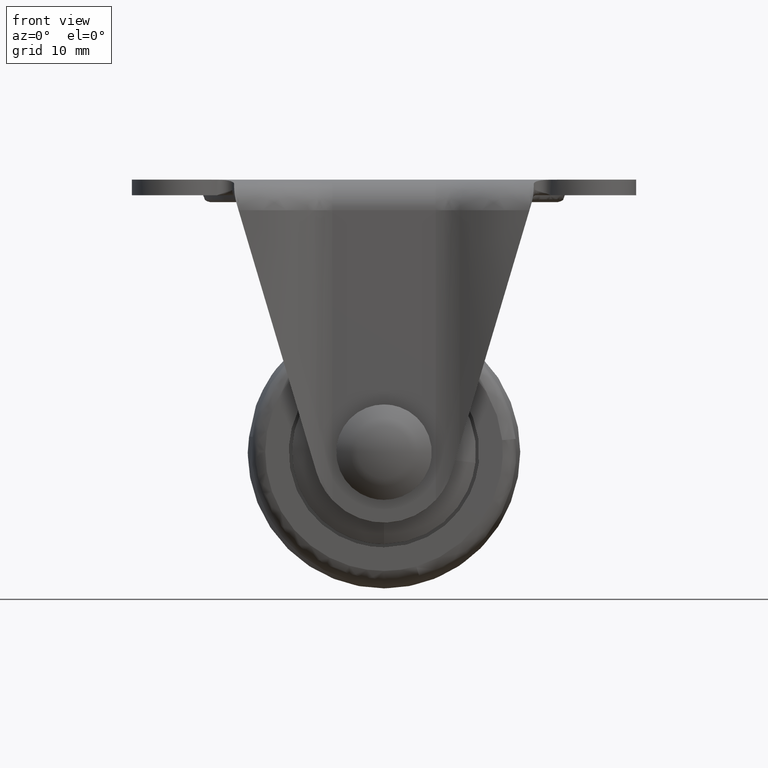
[diagram: clean part render]
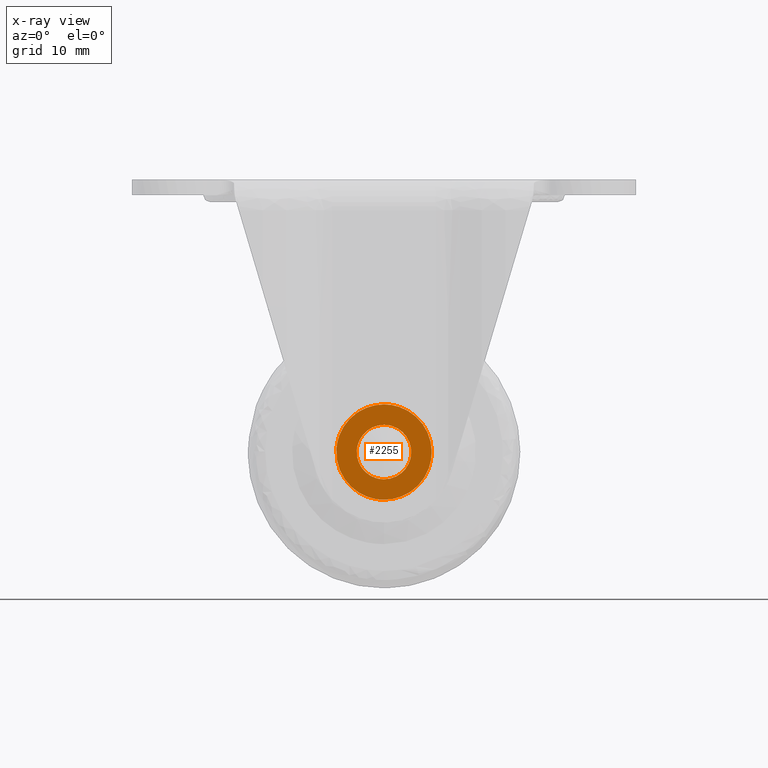
[diagram: x-ray — body ghosted, one internal face saturated and labeled with its STEP entity id]
A machine part, front view, then the same camera in x-ray: the body is ghosted and one INTERNAL B-rep face — a face not visible from any outside direction — is saturated and labeled: STEP entity #2255.
In plain terms, the highlighted face is a freeform B-spline surface patch.
Its self-contained STEP definition (entity closure, byte-faithful):
#859=CARTESIAN_POINT('',(-2.575316656557962,-15.499999999982430,-46.509050938393131));
#860=VERTEX_POINT('',#859);
#866=CARTESIAN_POINT('',(-6.978421336135041,-15.499999999975261,-39.450786329763567));
#867=VERTEX_POINT('',#866);
#868=CARTESIAN_POINT('',(-6.978421336135042,-15.499999999975255,-39.450786329763574));
#869=CARTESIAN_POINT('',(-7.0,-15.500000000000002,-39.724969250805259));
#870=CARTESIAN_POINT('',(-7.0,-15.500000000000000,-40.0));
#871=CARTESIAN_POINT('',(-6.999999999999999,-15.500000000000000,-44.758417731975371));
#872=CARTESIAN_POINT('',(-2.575316656557961,-15.499999999982430,-46.509050938393123));
#880=(BOUNDED_CURVE()B_SPLINE_CURVE(2,(#868,#869,#870,#871,#872),.UNSPECIFIED.,.F.,.U.)B_SPLINE_CURVE_WITH_KNOTS((3,2,3),(0.736331300625869,0.750000000000000,0.937532549933941),.UNSPECIFIED.)CURVE()GEOMETRIC_REPRESENTATION_ITEM()RATIONAL_B_SPLINE_CURVE((0.969723356157420,0.983986122573270,1.0,0.780291951270214,0.890203187494886))REPRESENTATION_ITEM(''));
#881=EDGE_CURVE('',#867,#860,#880,.T.);
#978=CARTESIAN_POINT('',(0.0,-15.500000000000000,-33.0));
#979=VERTEX_POINT('',#978);
#980=CARTESIAN_POINT('',(0.0,-15.500000000000000,-33.0));
#981=CARTESIAN_POINT('',(-6.470733441346284,-15.500000000000009,-33.000000000000007));
#982=CARTESIAN_POINT('',(-6.978421336135041,-15.499999999975257,-39.450786329763574));
#990=(BOUNDED_CURVE()B_SPLINE_CURVE(2,(#980,#981,#982),.UNSPECIFIED.,.F.,.U.)B_SPLINE_CURVE_WITH_KNOTS((3,3),(0.500000000000000,0.736331300625869),.UNSPECIFIED.)CURVE()GEOMETRIC_REPRESENTATION_ITEM()RATIONAL_B_SPLINE_CURVE((1.0,0.723120658613278,0.969723356157421))REPRESENTATION_ITEM(''));
#991=EDGE_CURVE('',#979,#867,#990,.T.);
#993=CARTESIAN_POINT('',(0.0,-15.500000000000000,-47.0));
#994=VERTEX_POINT('',#993);
#995=CARTESIAN_POINT('',(0.0,-15.500000000000000,-47.0));
#996=CARTESIAN_POINT('',(6.999999999999999,-15.500000000000005,-47.000000000000014));
#997=CARTESIAN_POINT('',(7.0,-15.500000000000000,-40.0));
#998=CARTESIAN_POINT('',(6.999999999999999,-15.500000000000005,-33.0));
#999=CARTESIAN_POINT('',(0.0,-15.500000000000000,-33.0));
#1007=(BOUNDED_CURVE()B_SPLINE_CURVE(2,(#995,#996,#997,#998,#999),.UNSPECIFIED.,.F.,.U.)B_SPLINE_CURVE_WITH_KNOTS((3,2,3),(0.0,0.250000000000000,0.500000000000000),.UNSPECIFIED.)CURVE()GEOMETRIC_REPRESENTATION_ITEM()RATIONAL_B_SPLINE_CURVE((1.0,0.707106781186547,1.0,0.707106781186547,1.0))REPRESENTATION_ITEM(''));
#1008=EDGE_CURVE('',#994,#979,#1007,.T.);
#1010=CARTESIAN_POINT('',(-2.575316656557963,-15.499999999982434,-46.509050938393131));
#1011=CARTESIAN_POINT('',(-1.334454705883002,-15.499999999999998,-47.000000000000007));
#1012=CARTESIAN_POINT('',(0.0,-15.500000000000000,-47.0));
#1020=(BOUNDED_CURVE()B_SPLINE_CURVE(2,(#1010,#1011,#1012),.UNSPECIFIED.,.F.,.U.)B_SPLINE_CURVE_WITH_KNOTS((3,3),(0.937532549933940,1.0),.UNSPECIFIED.)CURVE()GEOMETRIC_REPRESENTATION_ITEM()RATIONAL_B_SPLINE_CURVE((0.890203187494886,0.926814829916332,1.0))REPRESENTATION_ITEM(''));
#1021=EDGE_CURVE('',#860,#994,#1020,.T.);
#1049=CARTESIAN_POINT('',(3.972038105451626,-15.500000000000000,-40.472136938653591));
#1050=VERTEX_POINT('',#1049);
#1051=CARTESIAN_POINT('',(0.0,-15.500000000000000,-35.999999999999893));
#1052=VERTEX_POINT('',#1051);
#1053=CARTESIAN_POINT('',(3.972038105451625,-15.499999999999996,-40.472136938653591));
#1054=CARTESIAN_POINT('',(4.000000000000116,-15.500000000000004,-40.236896478634463));
#1055=CARTESIAN_POINT('',(4.000000000000116,-15.500000000000000,-40.0));
#1056=CARTESIAN_POINT('',(4.000000000000116,-15.500000000000004,-35.999999999999879));
#1057=CARTESIAN_POINT('',(0.0,-15.500000000000000,-35.999999999999893));
#1065=(BOUNDED_CURVE()B_SPLINE_CURVE(2,(#1053,#1054,#1055,#1056,#1057),.UNSPECIFIED.,.F.,.U.)B_SPLINE_CURVE_WITH_KNOTS((3,2,3),(0.229562473513386,0.250000000000000,0.500000000000000),.UNSPECIFIED.)CURVE()GEOMETRIC_REPRESENTATION_ITEM()RATIONAL_B_SPLINE_CURVE((0.956026754183460,0.976055948331002,1.0,0.707106781186548,1.0))REPRESENTATION_ITEM(''));
#1066=EDGE_CURVE('',#1050,#1052,#1065,.T.);
#1068=CARTESIAN_POINT('',(-3.992539193679579,-15.500000000000000,-39.755805841729710));
#1069=VERTEX_POINT('',#1068);
#1070=CARTESIAN_POINT('',(0.0,-15.500000000000000,-35.999999999999893));
#1071=CARTESIAN_POINT('',(-3.762824267375785,-15.500000000000000,-35.999999999999901));
#1072=CARTESIAN_POINT('',(-3.992539193679579,-15.500000000000002,-39.755805841729710));
#1080=(BOUNDED_CURVE()B_SPLINE_CURVE(2,(#1070,#1071,#1072),.UNSPECIFIED.,.F.,.U.)B_SPLINE_CURVE_WITH_KNOTS((3,3),(0.500000000000000,0.739332962230658),.UNSPECIFIED.)CURVE()GEOMETRIC_REPRESENTATION_ITEM()RATIONAL_B_SPLINE_CURVE((1.0,0.719603993296416,0.976072041648962))REPRESENTATION_ITEM(''));
#1081=EDGE_CURVE('',#1052,#1069,#1080,.T.);
#1148=CARTESIAN_POINT('',(0.0,-15.500000000000000,-44.000000000000107));
#1149=VERTEX_POINT('',#1148);
#1150=CARTESIAN_POINT('',(0.0,-15.500000000000000,-44.000000000000107));
#1151=CARTESIAN_POINT('',(3.552698103757769,-15.500000000000002,-44.000000000000121));
#1152=CARTESIAN_POINT('',(3.972038105451625,-15.500000000000004,-40.472136938653584));
#1160=(BOUNDED_CURVE()B_SPLINE_CURVE(2,(#1150,#1151,#1152),.UNSPECIFIED.,.F.,.U.)B_SPLINE_CURVE_WITH_KNOTS((3,3),(0.0,0.229562473513386),.UNSPECIFIED.)CURVE()GEOMETRIC_REPRESENTATION_ITEM()RATIONAL_B_SPLINE_CURVE((1.0,0.731050832855546,0.956026754183460))REPRESENTATION_ITEM(''));
#1161=EDGE_CURVE('',#1149,#1050,#1160,.T.);
#1195=CARTESIAN_POINT('',(-3.992539193679579,-15.499999999999998,-39.755805841729710));
#1196=CARTESIAN_POINT('',(-4.000000000000116,-15.500000000000000,-39.877788946674428));
#1197=CARTESIAN_POINT('',(-4.000000000000116,-15.500000000000000,-40.0));
#1198=CARTESIAN_POINT('',(-4.000000000000116,-15.500000000000004,-44.000000000000121));
#1199=CARTESIAN_POINT('',(0.0,-15.500000000000000,-44.000000000000107));
#1207=(BOUNDED_CURVE()B_SPLINE_CURVE(2,(#1195,#1196,#1197,#1198,#1199),.UNSPECIFIED.,.F.,.U.)B_SPLINE_CURVE_WITH_KNOTS((3,2,3),(0.739332962230658,0.750000000000000,1.0),.UNSPECIFIED.)CURVE()GEOMETRIC_REPRESENTATION_ITEM()RATIONAL_B_SPLINE_CURVE((0.976072041648961,0.987502787890131,1.0,0.707106781186548,1.0))REPRESENTATION_ITEM(''));
#1208=EDGE_CURVE('',#1069,#1149,#1207,.T.);
#2238=CARTESIAN_POINT('',(-7.699154882995673,-15.500000000000000,-47.699299972865283));
#2239=CARTESIAN_POINT('',(-7.699154882995673,-15.500000000000000,-32.300699651625457));
#2240=CARTESIAN_POINT('',(7.699293445913383,-15.500000000000000,-47.699299972865283));
#2241=CARTESIAN_POINT('',(7.699293445913383,-15.500000000000000,-32.300699651625457));
#2242=B_SPLINE_SURFACE_WITH_KNOTS('',1,1,((#2238,#2240),(#2239,#2241)),.UNSPECIFIED.,.F.,.F.,.U.,(2,2),(2,2),(0.0,15.398600321239821),(0.0,15.398448328909060),.UNSPECIFIED.);
#2243=ORIENTED_EDGE('',*,*,#1008,.T.);
#2244=ORIENTED_EDGE('',*,*,#991,.T.);
#2245=ORIENTED_EDGE('',*,*,#881,.T.);
#2246=ORIENTED_EDGE('',*,*,#1021,.T.);
#2247=EDGE_LOOP('',(#2243,#2244,#2245,#2246));
#2248=FACE_OUTER_BOUND('',#2247,.T.);
#2249=ORIENTED_EDGE('',*,*,#1081,.F.);
#2250=ORIENTED_EDGE('',*,*,#1066,.F.);
#2251=ORIENTED_EDGE('',*,*,#1161,.F.);
#2252=ORIENTED_EDGE('',*,*,#1208,.F.);
#2253=EDGE_LOOP('',(#2249,#2250,#2251,#2252));
#2254=FACE_BOUND('',#2253,.T.);
#2255=ADVANCED_FACE('',(#2248,#2254),#2242,.F.);